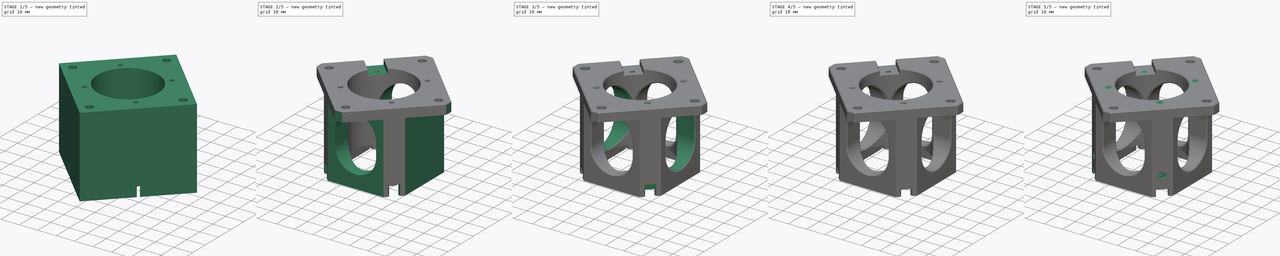
[diagram: build sequence overview — one tinted view per stage of 5, left to right]
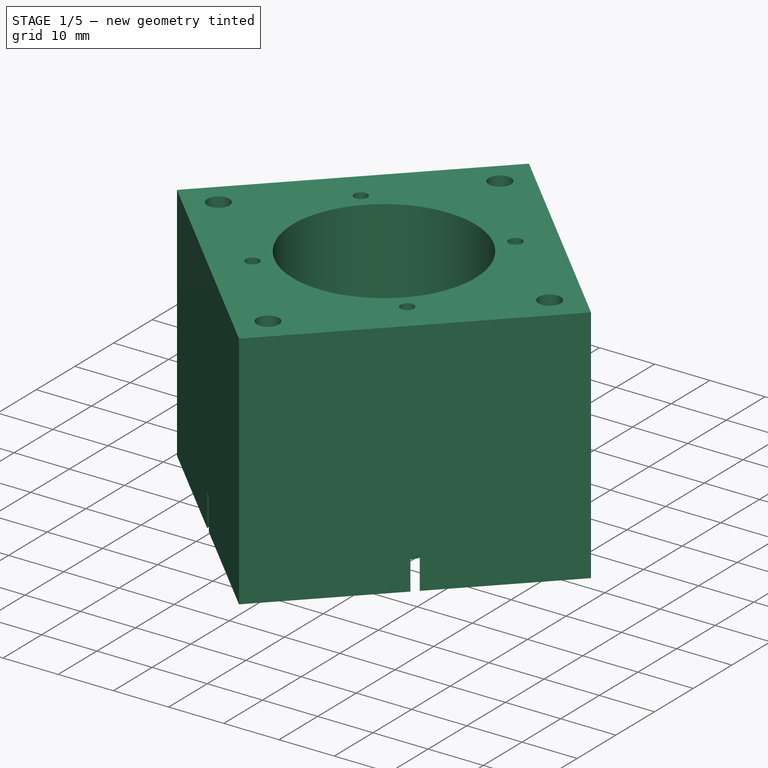
[diagram: stage 1 of 5 — iso view after this stage's code; geometry added in this stage tinted green]
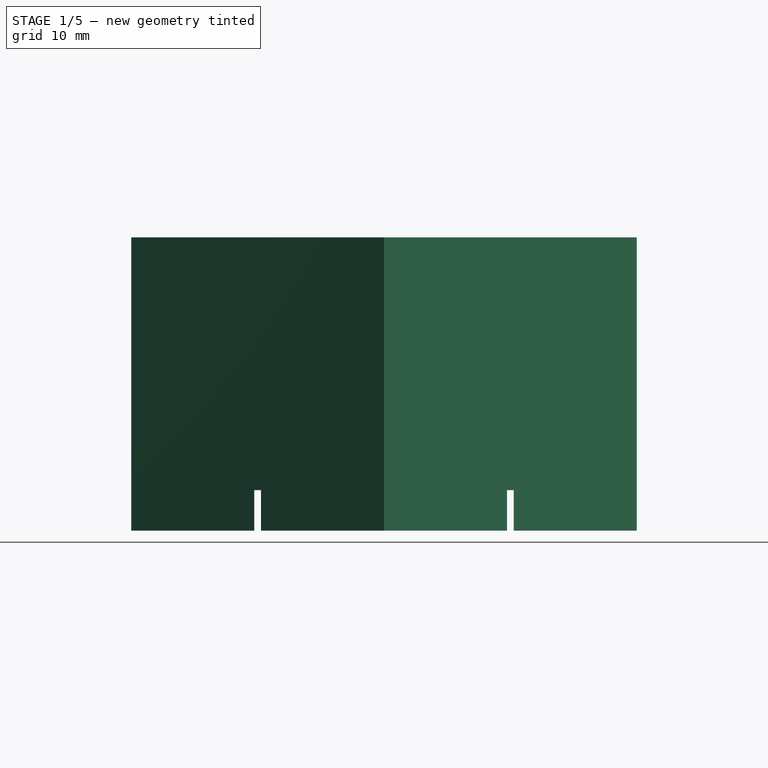
[diagram: stage 1 of 5 — front view after this stage's code; geometry added in this stage tinted green]
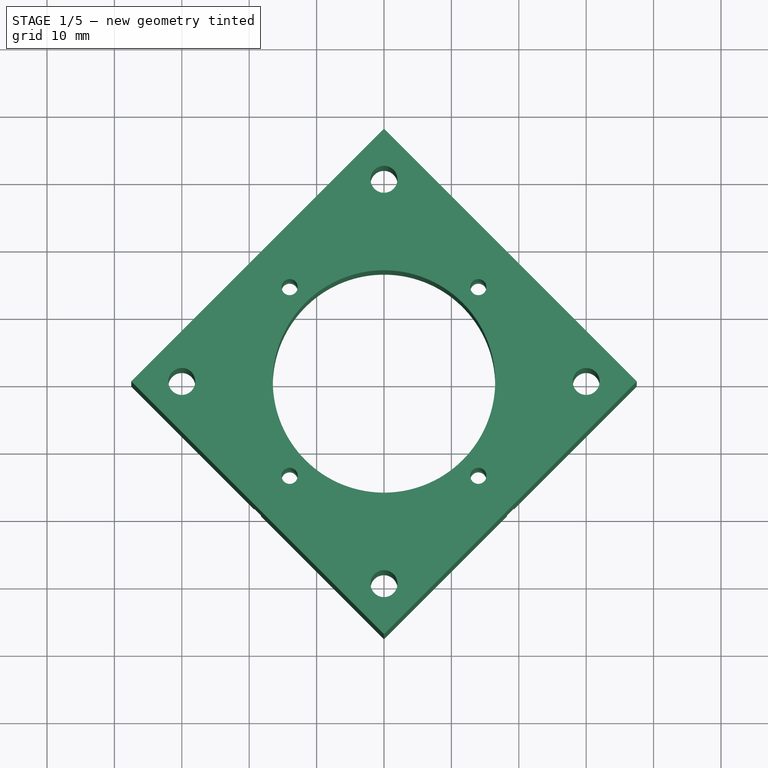
[diagram: stage 1 of 5 — top view after this stage's code; geometry added in this stage tinted green]
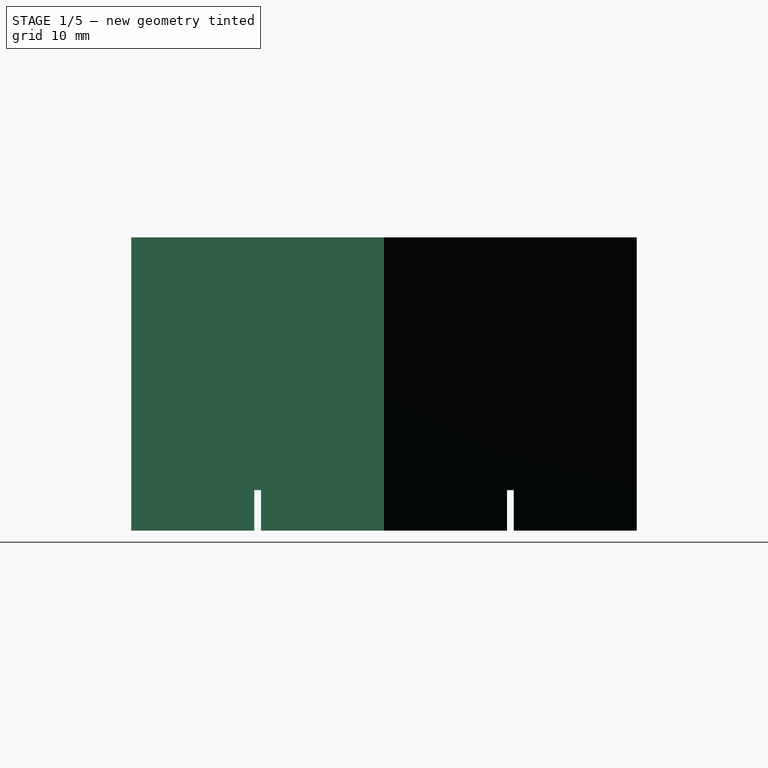
[diagram: stage 1 of 5 — right view after this stage's code; geometry added in this stage tinted green]
FCSTD DOCUMENT  (FreeCAD 0.19R24276 (Git))
Label: bottom-camera-mount
License: All rights reserved
LicenseURL: http://en.wikipedia.org/wiki/All_rights_reserved
objects: Sketcher::SketchObject×19, PartDesign::Plane×13, PartDesign::Pocket×11, PartDesign::Pad×6, PartDesign::PolarPattern×5, PartDesign::Chamfer×3, PartDesign::Hole×1, PartDesign::Line×1, PartDesign::Groove×1, PartDesign::Fillet×1, PartDesign::Body×1
note: 85 computed .brp shape members not serialized (recipe doc carries the construction recipe); baked Part::Feature solids carry a one-line shape summary decoded from their .brp

FEATURE [Sketcher::SketchObject] Sketch
  FullyConstrained = false
  MapMode = 5
  Support = -> [XY_Plane]
  sketch-geometry (16):
    g0: LineSegment StartX=-37.5 StartY=0 StartZ=0 EndX=0 EndY=37.5 EndZ=0
    g1: LineSegment StartX=0 StartY=37.5 StartZ=0 EndX=37.5 EndY=0 EndZ=0
    g2: LineSegment StartX=37.5 StartY=0 StartZ=0 EndX=3.233e-12 EndY=-37.5 EndZ=0
    g3: LineSegment StartX=3.233e-12 StartY=-37.5 StartZ=0 EndX=-37.5 EndY=0 EndZ=0
    g4: LineSegment StartX=-30 StartY=3.6e-15 StartZ=0 EndX=0 EndY=30 EndZ=0
    g5: LineSegment StartX=0 StartY=30 StartZ=0 EndX=30 EndY=3.6e-15 EndZ=0
    g6: LineSegment StartX=30 StartY=3.6e-15 StartZ=0 EndX=-9.95e-14 EndY=-30 EndZ=0
    g7: LineSegment StartX=-9.95e-14 StartY=-30 StartZ=0 EndX=-30 EndY=3.6e-15 EndZ=0
    g8: LineSegment StartX=-19.1024 StartY=18.5846 StartZ=0 EndX=19.3976 EndY=18.5846 EndZ=0
    g9: LineSegment StartX=19.3976 StartY=18.5846 StartZ=0 EndX=19.3976 EndY=-19.9154 EndZ=0
    g10: LineSegment StartX=19.3976 StartY=-19.9154 StartZ=0 EndX=-19.1024 EndY=-19.9154 EndZ=0
    g11: LineSegment StartX=-19.1024 StartY=-19.9154 StartZ=0 EndX=-19.1024 EndY=18.5846 EndZ=0
    g12: Circle CenterX=0 CenterY=30 CenterZ=0 NormalX=0 NormalY=0 NormalZ=1 AngleXU=0 Radius=2
    g13: Circle CenterX=30 CenterY=3.6e-15 CenterZ=0 NormalX=0 NormalY=0 NormalZ=1 AngleXU=0 Radius=2
    g14: Circle CenterX=-30 CenterY=3.6e-15 CenterZ=0 NormalX=0 NormalY=0 NormalZ=1 AngleXU=0 Radius=2
    g15: Circle CenterX=-9.95e-14 CenterY=-30 CenterZ=0 NormalX=0 NormalY=0 NormalZ=1 AngleXU=0 Radius=2
  constraints (42):
    c: PointOnObject(g0,g-1)
    c: PointOnObject(g0,g-2)
    c: Coincident(g0,g1)
    c: PointOnObject(g1,g-1)
    c: Coincident(g1,g2)
    c: Coincident(g2,g3)
    c: Coincident(g3,g0)
    c: PointOnObject(g4,g-1)
    c: PointOnObject(g4,g-2)
    c: Coincident(g4,g5)
    c: PointOnObject(g5,g-1)
    c: Coincident(g5,g6)
    c: Coincident(g6,g7)
    c: Coincident(g7,g4)
    c: Equal(g0,g1)
    c: Equal(g0,g2)
    c: Equal(g0,g3)
    c: Equal(g4,g5)
    c: Equal(g4,g6)
    c: Equal(g4,g7)
    c: Angle(g-1,g4) = 0.785398
    c: Angle(g-1,g0) = 0.785398
    c: DistanceY(g6,g4) = 60
    c: DistanceY(g2,g0) = 75
    c: Coincident(g8,g9)
    c: Coincident(g9,g10)
    c: Coincident(g10,g11)
    c: Coincident(g11,g8)
    c: Horizontal(g8)
    c: Horizontal(g10)
    c: Vertical(g9)
    c: Vertical(g11)
    c: DistanceX(g8,g8) = 38.5
    c: DistanceY(g11,g11) = 38.5
    c: Coincident(g12,g4)
    c: Coincident(g13,g5)
    c: Coincident(g14,g4)
    c: Coincident(g15,g6)
    c: Diameter(g12) = 4
    c: Diameter(g13) = 4
    c: Diameter(g15) = 4
    c: Diameter(g14) = 4
FEATURE [PartDesign::Pad] Pad
  AllowMultiFace = false
  Direction = (1,1,1)
  Length = 43.5
  Length2 = 100
  Profile = -> Sketch
  Type = 0
FEATURE [Sketcher::SketchObject] Sketch001  label="CameraPCBCutOut"
  FullyConstrained = true
  MapMode = 5
  Support = -> [XY_Plane]
  sketch-geometry (4):
    g0: LineSegment StartX=-19.25 StartY=19.25 StartZ=0 EndX=19.25 EndY=19.25 EndZ=0
    g1: LineSegment StartX=19.25 StartY=19.25 StartZ=0 EndX=19.25 EndY=-19.25 EndZ=0
    g2: LineSegment StartX=19.25 StartY=-19.25 StartZ=0 EndX=-19.25 EndY=-19.25 EndZ=0
    g3: LineSegment StartX=-19.25 StartY=-19.25 StartZ=0 EndX=-19.25 EndY=19.25 EndZ=0
  constraints (10):
    c: Coincident(g0,g1)
    c: Coincident(g1,g2)
    c: Coincident(g2,g3)
    c: Coincident(g3,g0)
    c: Horizontal(g2)
    c: Vertical(g1)
    c: DistanceX(g0,g0) = 38.5
    c: DistanceY(g3,g3) = 38.5
    c: Symmetric(g0,g0,g-2)
    c: Symmetric(g2,g0,g-1)
FEATURE [PartDesign::Pocket] Pocket
  AllowMultiFace = false
  BaseFeature = -> Pad
  Length = 6
  Length2 = 100
  Profile = -> Sketch001
  Reversed = true
  Type = 0
FEATURE [Sketcher::SketchObject] Sketch002  label="CameraScrewHoles"
  FullyConstrained = true
  MapMode = 5
  Support = -> [XY_Plane]
  sketch-geometry (8):
    g0: LineSegment StartX=-14 StartY=14 StartZ=0 EndX=14 EndY=14 EndZ=0
    g1: LineSegment StartX=14 StartY=14 StartZ=0 EndX=14 EndY=-14 EndZ=0
    g2: LineSegment StartX=14 StartY=-14 StartZ=0 EndX=-14 EndY=-14 EndZ=0
    g3: LineSegment StartX=-14 StartY=-14 StartZ=0 EndX=-14 EndY=14 EndZ=0
    g4: Circle CenterX=-14 CenterY=14 CenterZ=0 NormalX=0 NormalY=0 NormalZ=1 AngleXU=0 Radius=1
    g5: Circle CenterX=14 CenterY=14 CenterZ=0 NormalX=0 NormalY=0 NormalZ=1 AngleXU=0 Radius=1
    g6: Circle CenterX=-14 CenterY=-14 CenterZ=0 NormalX=0 NormalY=0 NormalZ=1 AngleXU=0 Radius=1
    g7: Circle CenterX=14 CenterY=-14 CenterZ=0 NormalX=0 NormalY=0 NormalZ=1 AngleXU=0 Radius=1
  constraints (18):
    c: Coincident(g0,g1)
    c: Coincident(g1,g2)
    c: Coincident(g2,g3)
    c: Coincident(g3,g0)
    c: Horizontal(g2)
    c: Vertical(g1)
    c: DistanceX(g0,g0) = 28
    c: DistanceY(g3,g3) = 28
    c: Symmetric(g0,g0,g-2)
    c: Symmetric(g0,g2,g-1)
    c: Coincident(g4,g0)
    c: Coincident(g5,g0)
    c: Coincident(g6,g2)
    c: Coincident(g7,g1)
    c: Diameter(g4) = 2
    c: Equal(g6,g7)
    c: Equal(g7,g5)
    c: Equal(g5,g4)
FEATURE [Sketcher::SketchObject] Sketch005  label="CounterBoreM2.5BoltHeads"
  AttachmentOffset = pos=(0,0,14) rot=(0,0,1;0rad)
  FullyConstrained = false
  MapMode = 5
  Placement = pos=(0,0,14) rot=(0,0,1;0rad)
  Support = -> [XY_Plane]
  sketch-geometry (8):
    g0: LineSegment StartX=-14 StartY=14 StartZ=0 EndX=14 EndY=14 EndZ=0
    g1: LineSegment StartX=14 StartY=14 StartZ=0 EndX=14 EndY=-14 EndZ=0
    g2: LineSegment StartX=14 StartY=-14 StartZ=0 EndX=-14 EndY=-14 EndZ=0
    g3: LineSegment StartX=-14 StartY=-14 StartZ=0 EndX=-14 EndY=14 EndZ=0
    g4: Circle CenterX=-14 CenterY=14 CenterZ=0 NormalX=0 NormalY=0 NormalZ=1 AngleXU=0 Radius=2.5
    g5: Circle CenterX=14 CenterY=14 CenterZ=0 NormalX=0 NormalY=0 NormalZ=1 AngleXU=0 Radius=2.30173
    g6: Circle CenterX=14 CenterY=-14 CenterZ=0 NormalX=0 NormalY=0 NormalZ=1 AngleXU=0 Radius=2.30173
    g7: Circle CenterX=-14 CenterY=-14 CenterZ=0 NormalX=0 NormalY=0 NormalZ=1 AngleXU=0 Radius=2.30173
  constraints (18):
    c: Coincident(g0,g1)
    c: Coincident(g1,g2)
    c: Coincident(g2,g3)
    c: Coincident(g3,g0)
    c: Horizontal(g0)
    c: Horizontal(g2)
    c: Vertical(g1)
    c: Vertical(g3)
    c: Symmetric(g0,g1,g-1)
    c: DistanceX(g0,g0) = 28
    c: DistanceY(g1,g1) = 28
    c: Coincident(g4,g0)
    c: Coincident(g5,g0)
    c: Coincident(g6,g1)
    c: Coincident(g7,g2)
    c: Diameter(g4) = 5
    c: Equal(g5,g6)
    c: Equal(g6,g7)
FEATURE [Sketcher::SketchObject] Sketch006  label="CameraScrewTurrets"
  AttachmentOffset = pos=(0,0,3.5) rot=(0,0,1;0rad)
  FullyConstrained = true
  MapMode = 5
  Placement = pos=(0,0,3.5) rot=(0,0,1;0rad)
  Support = -> [XY_Plane]
  sketch-geometry (8):
    g0: LineSegment StartX=-14 StartY=14 StartZ=0 EndX=14 EndY=14 EndZ=0
    g1: LineSegment StartX=14 StartY=14 StartZ=0 EndX=14 EndY=-14 EndZ=0
    g2: LineSegment StartX=14 StartY=-14 StartZ=0 EndX=-14 EndY=-14 EndZ=0
    g3: LineSegment StartX=-14 StartY=-14 StartZ=0 EndX=-14 EndY=14 EndZ=0
    g4: Circle CenterX=-14 CenterY=14 CenterZ=0 NormalX=0 NormalY=0 NormalZ=1 AngleXU=0 Radius=3
    g5: Circle CenterX=14 CenterY=14 CenterZ=0 NormalX=0 NormalY=0 NormalZ=1 AngleXU=0 Radius=3
    g6: Circle CenterX=-14 CenterY=-14 CenterZ=0 NormalX=0 NormalY=0 NormalZ=1 AngleXU=0 Radius=3
    g7: Circle CenterX=14 CenterY=-14 CenterZ=0 NormalX=0 NormalY=0 NormalZ=1 AngleXU=0 Radius=3
  constraints (18):
    c: Coincident(g0,g1)
    c: Coincident(g1,g2)
    c: Coincident(g2,g3)
    c: Coincident(g3,g0)
    c: Horizontal(g2)
    c: Vertical(g1)
    c: DistanceX(g0,g0) = 28
    c: DistanceY(g3,g3) = 28
    c: Symmetric(g0,g0,g-2)
    c: Symmetric(g0,g2,g-1)
    c: Coincident(g4,g0)
    c: Coincident(g5,g0)
    c: Coincident(g6,g2)
    c: Coincident(g7,g1)
    c: Diameter(g4) = 6
    c: Equal(g4,g6)
    c: Equal(g6,g7)
    c: Equal(g7,g5)
FEATURE [PartDesign::Pad] Pad001  label="PCBSupports"
  BaseFeature = -> Pocket
  Direction = (1,1,1)
  Length = 10
  Length2 = 100
  Profile = -> Sketch006
  Type = 0
FEATURE [Sketcher::SketchObject] Sketch007  label="CameraLensCutOut"
  FullyConstrained = true
  MapMode = 5
  Support = -> [XY_Plane]
  sketch-geometry (1):
    g0: Circle CenterX=0 CenterY=0 CenterZ=0 NormalX=0 NormalY=0 NormalZ=1 AngleXU=0 Radius=16.5
  constraints (2):
    c: Coincident(g0,g-1)
    c: Diameter(g0) = 33
FEATURE [PartDesign::Pocket] Pocket007
  BaseFeature = -> Pad001
  Length = 5
  Length2 = 100
  Profile = -> Sketch007
  Reversed = true
  Type = 1
FEATURE [PartDesign::Hole] Hole
  BaseFeature = -> Pocket007
  Depth = 25
  DepthType = 1
  Diameter = 2.4
  DrillForDepth = false
  DrillPoint = 1
  DrillPointAngle = 118
  HoleCutCountersinkAngle = 90
  HoleCutCustomValues = false
  HoleCutDepth = 0
  HoleCutDiameter = 6.1
  HoleCutType = 0
  ModelActualThread = false
  Profile = -> Sketch002
  Reversed = true
  Tapered = false
  TaperedAngle = 90
  ThreadAngle = 0
  ThreadClass = 0
  ThreadCutOffInner = 0
  ThreadCutOffOuter = 0
  ThreadDirection = 0
  ThreadFit = 0
  ThreadPitch = 0
  ThreadSize = 6
  ThreadType = 1
  Threaded = false
FEATURE [PartDesign::Pocket] Pocket006
  BaseFeature = -> Hole
  Length = 4
  Length2 = 100
  Profile = -> Sketch005
  Type = 0
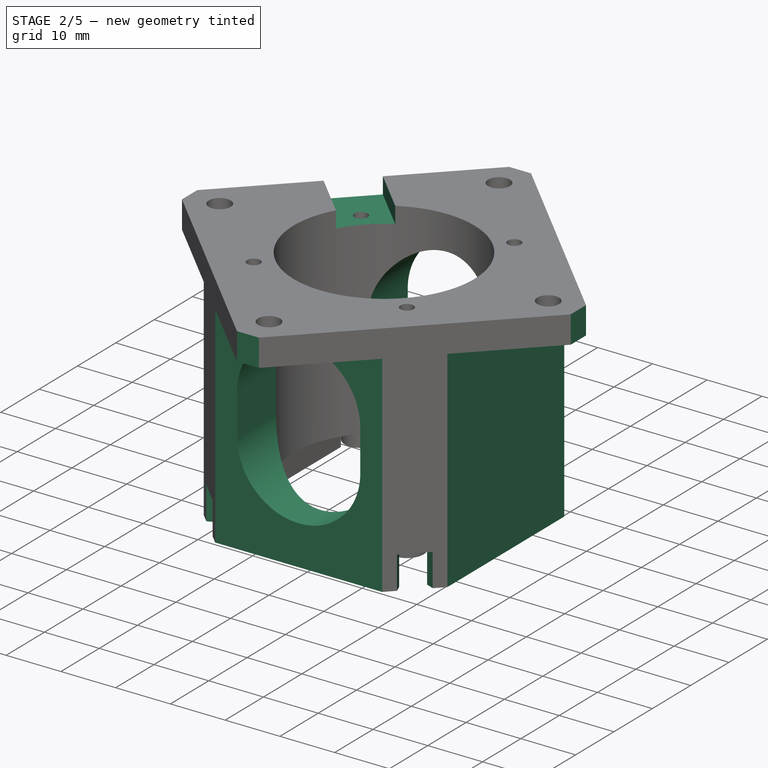
[diagram: stage 2 of 5 — iso view after this stage's code; geometry added in this stage tinted green]
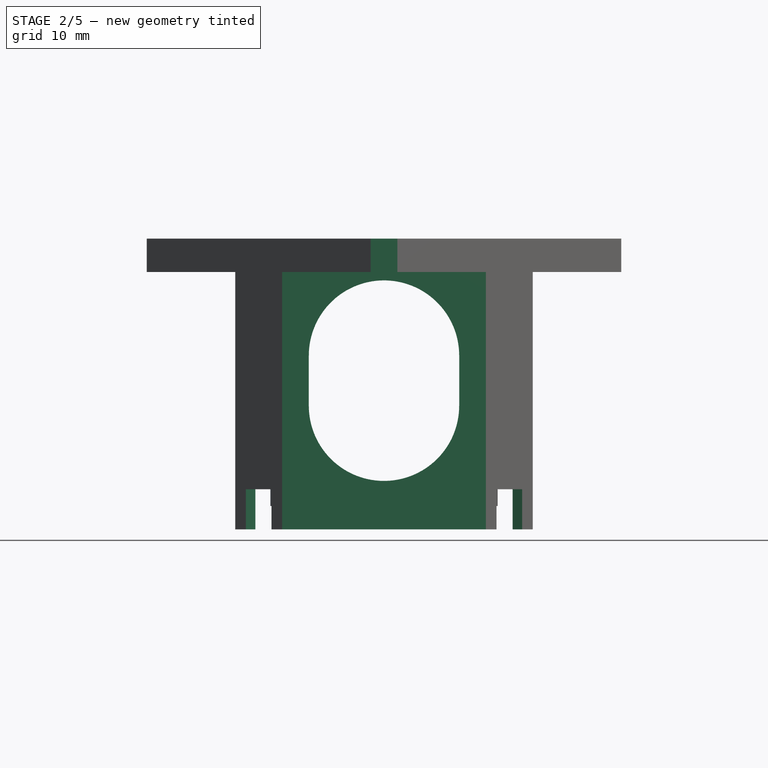
[diagram: stage 2 of 5 — front view after this stage's code; geometry added in this stage tinted green]
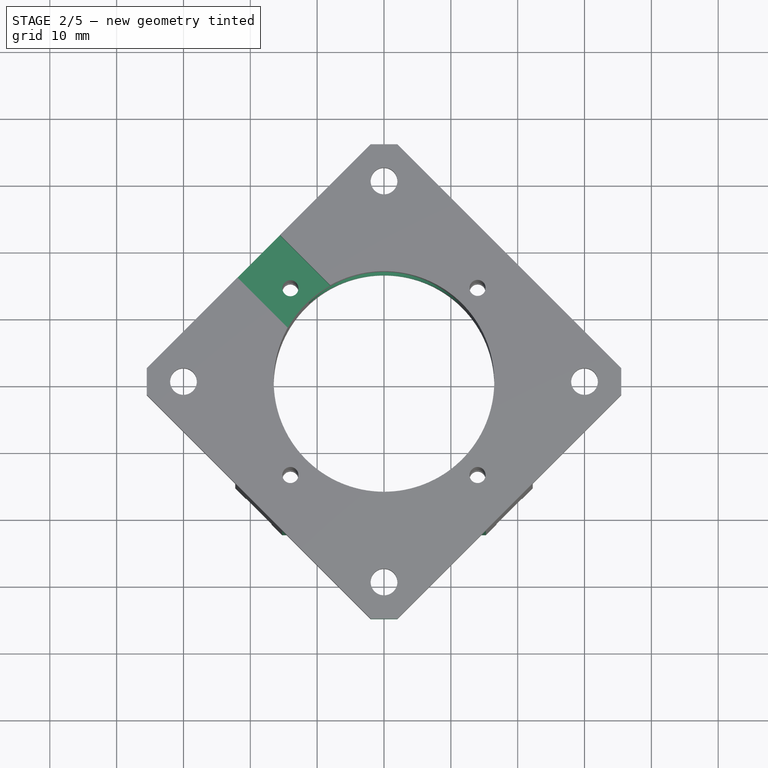
[diagram: stage 2 of 5 — top view after this stage's code; geometry added in this stage tinted green]
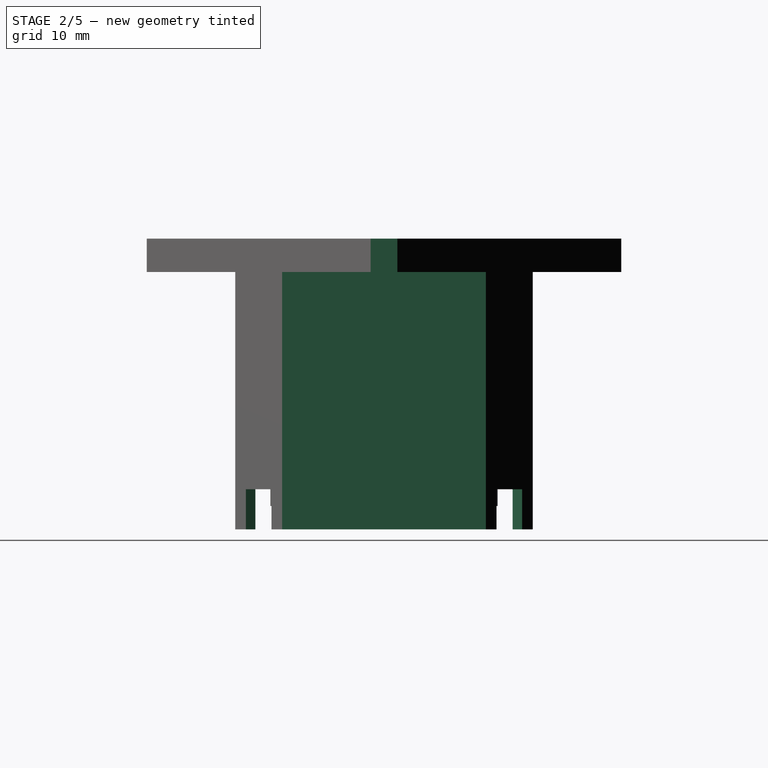
[diagram: stage 2 of 5 — right view after this stage's code; geometry added in this stage tinted green]
FEATURE [PartDesign::Plane] DatumPlane002
  Length = 85.2
  MapMode = 5
  Placement = pos=(0,0,43.5) rot=(0,0,1;0rad)
  ResizeMode = 0
  Support = -> [Pocket006]
  Width = 85.2
FEATURE [Sketcher::SketchObject] Sketch008
  FullyConstrained = true
  MapMode = 5
  Placement = pos=(0,0,43.5) rot=(0,0,1;0rad)
  Support = -> [DatumPlane002]
  sketch-geometry (4):
    g0: LineSegment StartX=-6.36396 StartY=0 StartZ=0 EndX=-22.6274 EndY=16.2635 EndZ=0
    g1: LineSegment StartX=-22.6274 StartY=16.2635 StartZ=0 EndX=-16.2635 EndY=22.6274 EndZ=0
    g2: LineSegment StartX=-16.2635 StartY=22.6274 StartZ=0 EndX=0 EndY=6.36396 EndZ=0
    g3: LineSegment StartX=0 StartY=6.36396 StartZ=0 EndX=-6.36396 EndY=0 EndZ=0
  constraints (12):
    c: PointOnObject(g0,g-1)
    c: Coincident(g0,g1)
    c: Coincident(g1,g2)
    c: PointOnObject(g2,g-2)
    c: Coincident(g2,g3)
    c: Coincident(g3,g0)
    c: Parallel(g1,g3)
    c: Parallel(g0,g2)
    c: Angle(g-1,g3) = 0.785398
    c: Distance(g3) = 9
    c: Distance(g0) = 23
    c: Perpendicular(g3,g2)
FEATURE [PartDesign::Pocket] Pocket008
  BaseFeature = -> Pocket006
  Length = 3
  Length2 = 100
  Profile = -> Sketch008
  Type = 0
FEATURE [PartDesign::Plane] DatumPlane001  label="PrintPlane"
  AttachmentOffset = pos=(0,0,0) rot=(0,0,1;0.785398rad)
  Length = 120.491
  MapMode = 5
  Placement = pos=(0,0,43.5) rot=(0,0,1;0.785398rad)
  ResizeMode = 0
  Support = -> [Pocket008]
  Width = 120.491
FEATURE [Sketcher::SketchObject] Sketch009
  ExternalGeometry = -> [Pocket008]
  FullyConstrained = true
  MapMode = 5
  Placement = pos=(0,0,43.5) rot=(0,0,1;0rad)
  Support = -> [DatumPlane002]
  sketch-geometry (11):
    g0: LineSegment StartX=35.5 StartY=35.5 StartZ=0 EndX=-35.5 EndY=35.5 EndZ=0
    g1: LineSegment StartX=-35.5 StartY=35.5 StartZ=0 EndX=-35.5 EndY=-35.5 EndZ=0
    g2: LineSegment StartX=-35.5 StartY=-35.5 StartZ=0 EndX=35.5 EndY=-35.5 EndZ=0
    g3: LineSegment StartX=35.5 StartY=-35.5 StartZ=0 EndX=35.5 EndY=35.5 EndZ=0
    g4: Circle CenterX=0 CenterY=0 CenterZ=0 NormalX=0 NormalY=0 NormalZ=1 AngleXU=0 Radius=50.2046
    g5: GeomPoint X=4e-15 Y=35.5 Z=0
    g6: LineSegment StartX=38.3284 StartY=38.3284 StartZ=0 EndX=-38.3284 EndY=38.3284 EndZ=0
    g7: LineSegment StartX=-38.3284 StartY=38.3284 StartZ=0 EndX=-38.3284 EndY=-38.3284 EndZ=0
    g8: LineSegment StartX=-38.3284 StartY=-38.3284 StartZ=0 EndX=38.3284 EndY=-38.3284 EndZ=0
    g9: LineSegment StartX=38.3284 StartY=-38.3284 StartZ=0 EndX=38.3284 EndY=38.3284 EndZ=0
    g10: Circle CenterX=0 CenterY=0 CenterZ=0 NormalX=0 NormalY=0 NormalZ=1 AngleXU=0 Radius=54.2046
  constraints (29):
    c: Coincident(g0,g1)
    c: Coincident(g1,g2)
    c: Coincident(g2,g3)
    c: Coincident(g3,g0)
    c: Equal(g0,g1)
    c: Equal(g0,g2)
    c: Equal(g0,g3)
    c: PointOnObject(g0,g4)
    c: PointOnObject(g1,g4)
    c: PointOnObject(g2,g4)
    c: PointOnObject(g3,g4)
    c: Coincident(g4,g-1)
    c: Horizontal(g0)
    c: Symmetric(g0,g0,g5)
    c: Distance(g5,g-3) = 2
    c: Coincident(g6,g7)
    c: Coincident(g7,g8)
    c: Coincident(g8,g9)
    c: Coincident(g9,g6)
    c: Equal(g6,g7)
    c: Equal(g6,g8)
    c: Equal(g6,g9)
    c: PointOnObject(g6,g10)
    c: PointOnObject(g7,g10)
    c: PointOnObject(g8,g10)
    c: PointOnObject(g9,g10)
    c: Coincident(g10,g-1)
    c: Horizontal(g6)
    c: Distance(g0,g6) = 4
FEATURE [PartDesign::Pocket] Pocket009  label="Outer Chamfer"
  BaseFeature = -> Pocket008
  Length = 20
  Length2 = 100
  Profile = -> Sketch009
  Type = 1
FEATURE [PartDesign::Plane] DatumPlane
  Length = 85.2
  MapMode = 5
  Placement = pos=(0,0,6) rot=(1,0,0;3.14159rad)
  ResizeMode = 0
  Support = -> [Pocket009]
  Width = 85.2
FEATURE [PartDesign::Chamfer] Chamfer
  Angle = 45
  Base = -> Pocket009 [Edge62,Edge18,Edge31,Edge65,Edge2,Edge4,Edge71,Edge69]
  BaseFeature = -> Pocket009
  ChamferType = 0
  FlipDirection = false
  Size = 2
  Size2 = 1
  SupportTransform = false
FEATURE [PartDesign::Plane] DatumPlane003
  Length = 85.2
  MapMode = 5
  Placement = pos=(0,0,0) rot=(1,0,0;3.14159rad)
  ResizeMode = 0
  Support = -> [Pocket008]
  Width = 85.2
FEATURE [Sketcher::SketchObject] Sketch010
  ExternalGeometry = -> [Pocket008]
  FullyConstrained = true
  MapMode = 5
  Placement = pos=(0,0,0) rot=(1,0,0;3.14159rad)
  Support = -> [DatumPlane003]
  sketch-geometry (11):
    g0: LineSegment StartX=22.25 StartY=22.25 StartZ=0 EndX=-22.25 EndY=22.25 EndZ=0
    g1: LineSegment StartX=-22.25 StartY=22.25 StartZ=0 EndX=-22.25 EndY=-22.25 EndZ=0
    g2: LineSegment StartX=-22.25 StartY=-22.25 StartZ=0 EndX=22.25 EndY=-22.25 EndZ=0
    g3: LineSegment StartX=22.25 StartY=-22.25 StartZ=0 EndX=22.25 EndY=22.25 EndZ=0
    g4: Circle CenterX=0 CenterY=0 CenterZ=0 NormalX=0 NormalY=0 NormalZ=1 AngleXU=0 Radius=31.4663
    g5: GeomPoint X=-3.4e-15 Y=22.25 Z=0
    g6: LineSegment StartX=39.9277 StartY=39.9277 StartZ=0 EndX=-39.9277 EndY=39.9277 EndZ=0
    g7: LineSegment StartX=-39.9277 StartY=39.9277 StartZ=0 EndX=-39.9277 EndY=-39.9277 EndZ=0
    g8: LineSegment StartX=-39.9277 StartY=-39.9277 StartZ=0 EndX=39.9277 EndY=-39.9277 EndZ=0
    g9: LineSegment StartX=39.9277 StartY=-39.9277 StartZ=0 EndX=39.9277 EndY=39.9277 EndZ=0
    g10: Circle CenterX=0 CenterY=0 CenterZ=0 NormalX=0 NormalY=0 NormalZ=1 AngleXU=0 Radius=56.4663
  constraints (30):
    c: Coincident(g0,g1)
    c: Coincident(g1,g2)
    c: Coincident(g2,g3)
    c: Coincident(g3,g0)
    c: Equal(g0,g1)
    c: Equal(g0,g2)
    c: Equal(g0,g3)
    c: PointOnObject(g0,g4)
    c: PointOnObject(g1,g4)
    c: PointOnObject(g2,g4)
    c: PointOnObject(g3,g4)
    c: Coincident(g4,g-1)
    c: Horizontal(g0)
    c: Symmetric(g0,g0,g5)
    c: Coincident(g6,g7)
    c: Coincident(g7,g8)
    c: Coincident(g8,g9)
    c: Coincident(g9,g6)
    c: Equal(g6,g7)
    c: Equal(g6,g8)
    c: Equal(g6,g9)
    c: PointOnObject(g6,g10)
    c: PointOnObject(g7,g10)
    c: PointOnObject(g8,g10)
    c: PointOnObject(g9,g10)
    c: Coincident(g10,g-1)
    c: Horizontal(g6)
    c: Distance(g0,g6) = 25
    c: Distance(g-5) = 36.5
    c: DistanceX(g0,g-5) = 3
FEATURE [PartDesign::Pocket] Pocket010  label="Minimizes Form"
  BaseFeature = -> Chamfer
  Length = 38.5
  Length2 = 100
  Profile = -> Sketch010
  Type = 0
FEATURE [PartDesign::Plane] DatumPlane004
  Length = 84.9478
  MapMode = 5
  Placement = pos=(0,-22.25,0) rot=(1,0,0;1.5708rad)
  ResizeMode = 0
  Support = -> [Pocket010]
  Width = 82.4478
FEATURE [Sketcher::SketchObject] Sketch011
  ExternalGeometry = -> [Pocket010]
  FullyConstrained = true
  MapMode = 5
  Placement = pos=(0,0,0) rot=(1,0,0;1.5708rad)
  Support = -> [XZ_Plane]
  sketch-geometry (6):
    g0: ArcOfCircle CenterX=0 CenterY=18.5 CenterZ=0 NormalX=0 NormalY=0 NormalZ=1 AngleXU=0 Radius=11.25 StartAngle=3.14159 EndAngle=6.28319
    g1: ArcOfCircle CenterX=-5e-16 CenterY=26 CenterZ=0 NormalX=0 NormalY=0 NormalZ=1 AngleXU=0 Radius=11.25 StartAngle=1e-16 EndAngle=3.14159
    g2: LineSegment StartX=11.25 StartY=18.5 StartZ=0 EndX=11.25 EndY=26 EndZ=0
    g3: LineSegment StartX=-11.25 StartY=18.5 StartZ=0 EndX=-11.25 EndY=26 EndZ=0
    g4: LineSegment StartX=0 StartY=6 StartZ=0 EndX=0 EndY=7.25 EndZ=0
    g5: LineSegment StartX=0 StartY=38.5 StartZ=0 EndX=0 EndY=37.25 EndZ=0
  constraints (18):
    c: Tangent(g0,g3) = 1.5708
    c: Tangent(g0,g2) = -1.5708
    c: Tangent(g2,g1) = -1.5708
    c: Tangent(g3,g1) = 1.5708
    c: Vertical(g2)
    c: Equal(g0,g1)
    c: PointOnObject(g0,g-2)
    c: Diameter(g1) = 22.5
    c: DistanceY(g0,g1) = 7.5
    c: PointOnObject(g4,g-2)
    c: PointOnObject(g4,g0)
    c: Vertical(g4)
    c: PointOnObject(g4,g-3)
    c: PointOnObject(g5,g-4)
    c: PointOnObject(g5,g1)
    c: Tangent(g5,g4)
    c: Equal(g5,g4)
    c: DistanceY(g4,g4) = 1.25
FEATURE [PartDesign::Pocket] Pocket011  label="22.5mm oval cutout"
  BaseFeature = -> Pocket010
  Length = 200
  Length2 = 200
  Profile = -> Sketch011
  Type = 4
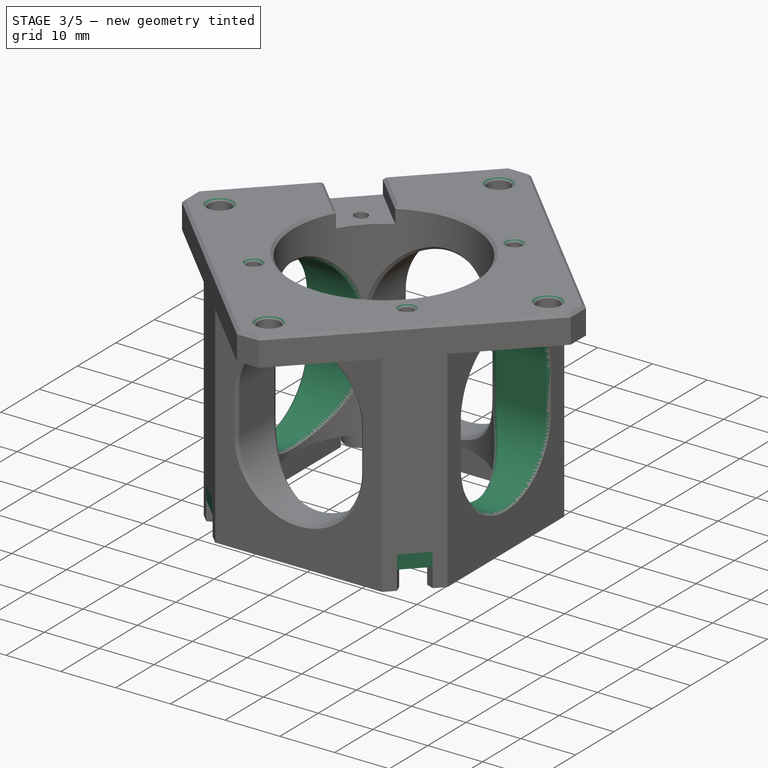
[diagram: stage 3 of 5 — iso view after this stage's code; geometry added in this stage tinted green]
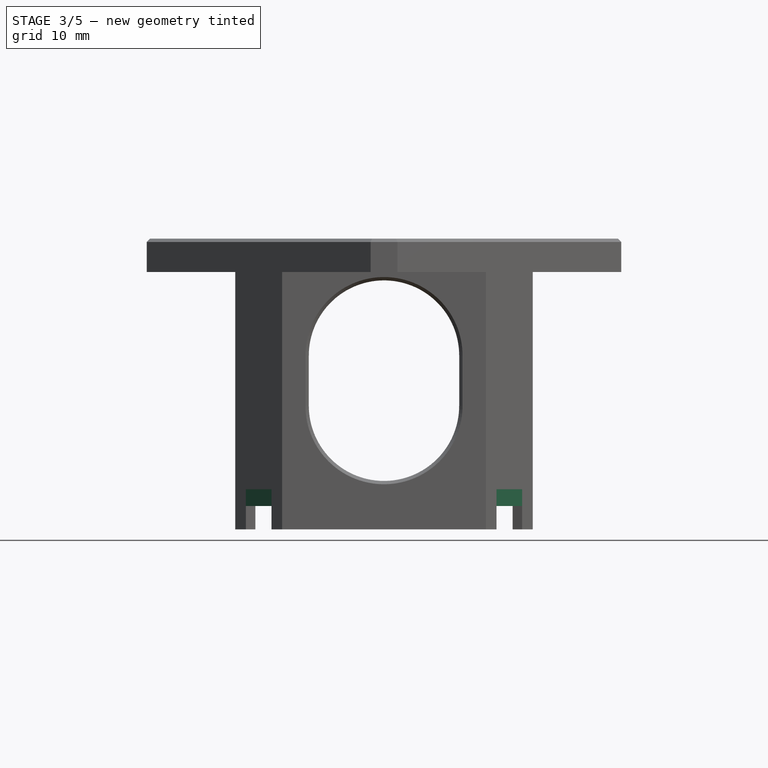
[diagram: stage 3 of 5 — front view after this stage's code; geometry added in this stage tinted green]
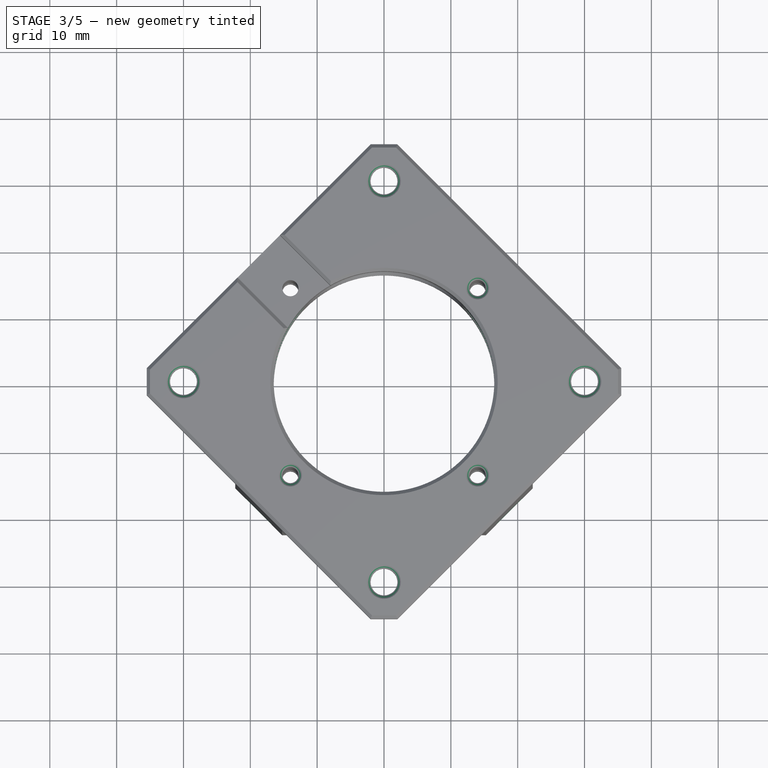
[diagram: stage 3 of 5 — top view after this stage's code; geometry added in this stage tinted green]
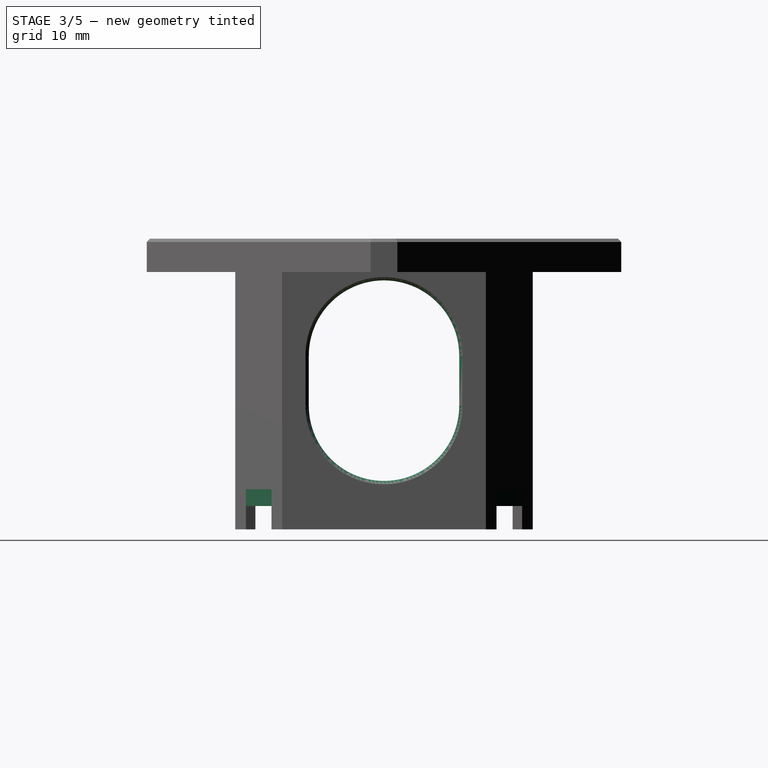
[diagram: stage 3 of 5 — right view after this stage's code; geometry added in this stage tinted green]
FEATURE [PartDesign::PolarPattern] PolarPattern
  Angle = 90
  Axis = -> Z_Axis
  BaseFeature = -> Pocket011
  Occurrences = 2
  Originals = -> [Pocket011]
  Reversed = true
FEATURE [PartDesign::Plane] DatumPlane005
  Length = 85.2
  MapMode = 5
  Placement = pos=(0,0,38.5) rot=(1,0,0;3.14159rad)
  ResizeMode = 0
  Support = -> [PolarPattern]
  Width = 85.2
FEATURE [Sketcher::SketchObject] Sketch012
  ExternalGeometry = -> [PolarPattern]
  FullyConstrained = true
  MapMode = 5
  Placement = pos=(0,0,38.5) rot=(1,0,0;3.14159rad)
  Support = -> [DatumPlane005]
  sketch-geometry (28):
    g0: LineSegment StartX=2.75 StartY=28.4123 StartZ=0 EndX=2.75 EndY=31.5877 EndZ=0
    g1: LineSegment StartX=2.75 StartY=31.5877 StartZ=0 EndX=0 EndY=33.1754 EndZ=0
    g2: LineSegment StartX=0 StartY=33.1754 StartZ=0 EndX=-2.75 EndY=31.5877 EndZ=0
    g3: LineSegment StartX=-2.75 StartY=31.5877 StartZ=0 EndX=-2.75 EndY=28.4123 EndZ=0
    g4: LineSegment StartX=-2.75 StartY=28.4123 StartZ=0 EndX=-3.709e-12 EndY=26.8246 EndZ=0
    g5: LineSegment StartX=-3.709e-12 StartY=26.8246 StartZ=0 EndX=2.75 EndY=28.4123 EndZ=0
    g6: Circle CenterX=-9.95e-14 CenterY=30 CenterZ=0 NormalX=0 NormalY=0 NormalZ=1 AngleXU=0 Radius=3.17543
    g7: LineSegment StartX=31.5877 StartY=2.75 StartZ=0 EndX=28.4123 EndY=2.75 EndZ=0
    g8: LineSegment StartX=28.4123 StartY=2.75 StartZ=0 EndX=26.8246 EndY=-7.1e-15 EndZ=0
    g9: LineSegment StartX=26.8246 StartY=-7.1e-15 StartZ=0 EndX=28.4123 EndY=-2.75 EndZ=0
    g10: LineSegment StartX=28.4123 StartY=-2.75 StartZ=0 EndX=31.5877 EndY=-2.75 EndZ=0
    g11: LineSegment StartX=31.5877 StartY=-2.75 StartZ=0 EndX=33.1754 EndY=0 EndZ=0
    g12: LineSegment StartX=33.1754 StartY=0 StartZ=0 EndX=31.5877 EndY=2.75 EndZ=0
    g13: Circle CenterX=30 CenterY=-3.6e-15 CenterZ=0 NormalX=0 NormalY=0 NormalZ=1 AngleXU=0 Radius=3.17543
    g14: LineSegment StartX=-26.8246 StartY=-6.9e-15 StartZ=0 EndX=-28.4123 EndY=2.75 EndZ=0
    g15: LineSegment StartX=-28.4123 StartY=2.75 StartZ=0 EndX=-31.5877 EndY=2.75 EndZ=0
    g16: LineSegment StartX=-31.5877 StartY=2.75 StartZ=0 EndX=-33.1754 EndY=0 EndZ=0
    g17: LineSegment StartX=-33.1754 StartY=0 StartZ=0 EndX=-31.5877 EndY=-2.75 EndZ=0
    g18: LineSegment StartX=-31.5877 StartY=-2.75 StartZ=0 EndX=-28.4123 EndY=-2.75 EndZ=0
    g19: LineSegment StartX=-28.4123 StartY=-2.75 StartZ=0 EndX=-26.8246 EndY=-7.1e-15 EndZ=0
    g20: Circle CenterX=-30 CenterY=-3.6e-15 CenterZ=0 NormalX=0 NormalY=0 NormalZ=1 AngleXU=0 Radius=3.17543
    g21: LineSegment StartX=2.75 StartY=-31.5877 StartZ=0 EndX=2.75 EndY=-28.4123 EndZ=0
    g22: LineSegment StartX=2.75 StartY=-28.4123 StartZ=0 EndX=0 EndY=-26.8246 EndZ=0
    g23: LineSegment StartX=0 StartY=-26.8246 StartZ=0 EndX=-2.75 EndY=-28.4123 EndZ=0
    g24: LineSegment StartX=-2.75 StartY=-28.4123 StartZ=0 EndX=-2.75 EndY=-31.5877 EndZ=0
    g25: LineSegment StartX=-2.75 StartY=-31.5877 StartZ=0 EndX=0 EndY=-33.1754 EndZ=0
    g26: LineSegment StartX=-2e-16 StartY=-33.1754 StartZ=0 EndX=2.75 EndY=-31.5877 EndZ=0
    g27: Circle CenterX=0 CenterY=-30 CenterZ=0 NormalX=0 NormalY=0 NormalZ=1 AngleXU=0 Radius=3.17543
  constraints (64):
    c: Coincident(g0,g1)
    c: Coincident(g1,g2)
    c: Coincident(g2,g3)
    c: Coincident(g3,g4)
    c: Coincident(g4,g5)
    c: Coincident(g5,g0)
    c: Equal(g0, g1-g5) x5
    c: PointOnObject(g0,g6)
    c: PointOnObject(g1,g6)
    c: PointOnObject(g2,g6)
    c: PointOnObject(g3,g6)
    c: PointOnObject(g4,g6)
    c: PointOnObject(g5,g6)
    c: Coincident(g6,g-6)
    c: Coincident(g7,g8)
    c: Coincident(g8,g9)
    c: Coincident(g9,g10)
    c: Coincident(g10,g11)
    c: Coincident(g11,g12)
    c: Coincident(g12,g7)
    c: Equal(g7, g8-g12) x5
    c: PointOnObject(g7,g13)
    c: PointOnObject(g8,g13)
    c: PointOnObject(g9,g13)
    c: PointOnObject(g10,g13)
    c: PointOnObject(g11,g13)
    c: PointOnObject(g12,g13)
    c: Coincident(g13,g-4)
    c: Coincident(g14,g15)
    c: Coincident(g15,g16)
    c: Coincident(g16,g17)
    c: Coincident(g17,g18)
    c: Coincident(g18,g19)
    c: Coincident(g19,g14)
    c: Equal(g14, g15-g19) x5
    c: PointOnObject(g14,g20)
    c: PointOnObject(g15,g20)
    c: PointOnObject(g16,g20)
    c: PointOnObject(g17,g20)
    c: PointOnObject(g18,g20)
    c: PointOnObject(g19,g20)
    c: Coincident(g20,g-3)
    c: Coincident(g21,g22)
    c: Coincident(g22,g23)
    c: Coincident(g23,g24)
    c: Coincident(g24,g25)
    c: Coincident(g25,g26)
    c: Coincident(g26,g21)
    c: Equal(g21, g22-g26) x5
    c: PointOnObject(g21,g27)
    c: PointOnObject(g22,g27)
    c: PointOnObject(g23,g27)
    c: PointOnObject(g24,g27)
    c: PointOnObject(g25,g27)
    c: PointOnObject(g26,g27)
    c: Coincident(g27,g-5)
    c: Equal(g27,g13)
    c: Equal(g13,g6)
    c: Equal(g6,g20)
    c: PointOnObject(g1,g-2)
    c: PointOnObject(g11,g-1)
    c: PointOnObject(g22,g-2)
    c: PointOnObject(g16,g-1)
    c: DistanceX(g2,g0) = 5.5
FEATURE [PartDesign::Pocket] Pocket012  label="M3 Hex Nut Pockets"
  BaseFeature = -> PolarPattern
  Length = 2.5
  Length2 = 100
  Profile = -> Sketch012
  Type = 0
FEATURE [PartDesign::Chamfer] Chamfer002
  Angle = 45
  Base = -> Pocket012 [Edge109,Edge164,Edge60,Edge162,Edge154,Edge238,Edge168,Edge233]
  ChamferType = 0
  FlipDirection = false
  Size = 0.5
  Size2 = 1
  SupportTransform = false
FEATURE [PartDesign::Chamfer] Chamfer003
  Angle = 45
  Base = -> Chamfer002 [Face21]
  BaseFeature = -> Chamfer002
  ChamferType = 0
  FlipDirection = false
  Size = 0.5
  Size2 = 1
  SupportTransform = false
FEATURE [PartDesign::Plane] DatumPlane006
  Length = 85.2
  MapMode = 5
  Placement = pos=(0,0,6) rot=(1,0,0;3.14159rad)
  ResizeMode = 0
  Support = -> [Chamfer003]
  Width = 85.2
FEATURE [Sketcher::SketchObject] Sketch013
  ExternalGeometry = -> [Chamfer003]
  FullyConstrained = true
  MapMode = 5
  Placement = pos=(0,0,6) rot=(1,0,0;3.14159rad)
  Support = -> [DatumPlane006]
  sketch-geometry (4):
    g0: LineSegment StartX=-19.25 StartY=-16.25 StartZ=0 EndX=-16.25 EndY=-19.25 EndZ=0
    g1: LineSegment StartX=-16.25 StartY=-19.25 StartZ=0 EndX=-16.8358 EndY=-20.6642 EndZ=0
    g2: LineSegment StartX=-16.8358 StartY=-20.6642 StartZ=0 EndX=-20.6642 EndY=-16.8358 EndZ=0
    g3: LineSegment StartX=-20.6642 StartY=-16.8358 StartZ=0 EndX=-19.25 EndY=-16.25 EndZ=0
  constraints (8):
    c: Coincident(g0,g-3)
    c: Coincident(g0,g-7)
    c: Coincident(g1,g0)
    c: Coincident(g1,g-7)
    c: Coincident(g2,g1)
    c: Coincident(g2,g-4)
    c: Coincident(g3,g2)
    c: Coincident(g3,g0)
FEATURE [PartDesign::Pad] Pad002
  BaseFeature = -> Chamfer003
  Direction = (1,1,1)
  Length = 2.5
  Length2 = 100
  Profile = -> Sketch013
  Type = 0
FEATURE [PartDesign::PolarPattern] PolarPattern001
  Angle = 360
  Axis = -> Sketch013 [N_Axis]
  BaseFeature = -> Pad002
  Occurrences = 4
  Originals = -> [Pad002]
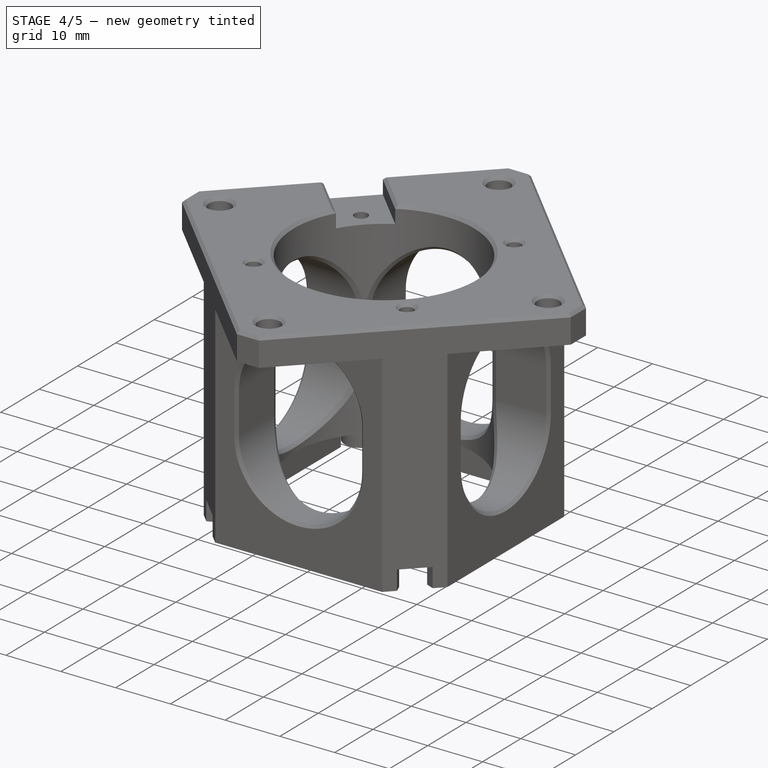
[diagram: stage 4 of 5 — iso view after this stage's code; geometry added in this stage tinted green]
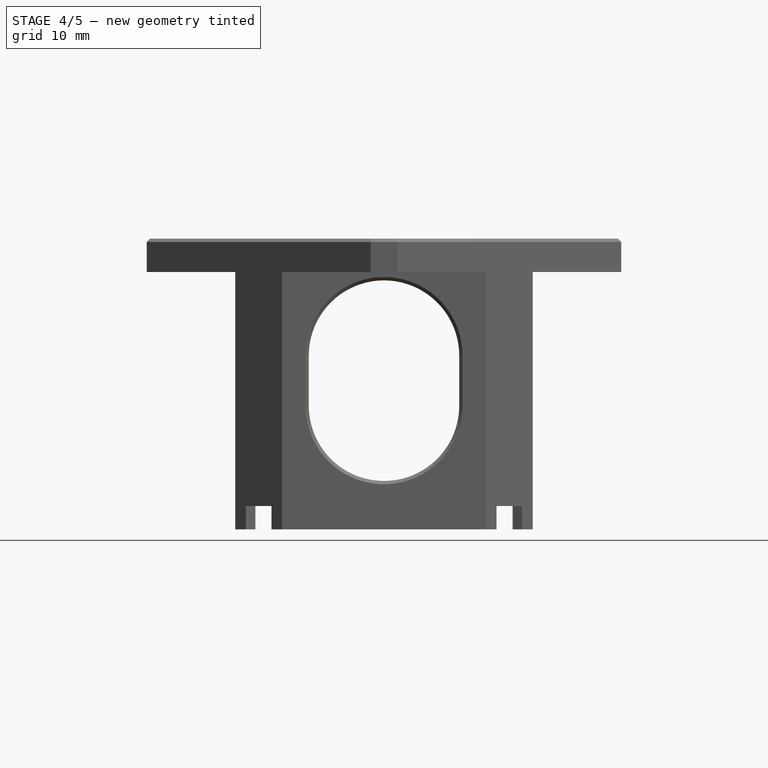
[diagram: stage 4 of 5 — front view after this stage's code; geometry added in this stage tinted green]
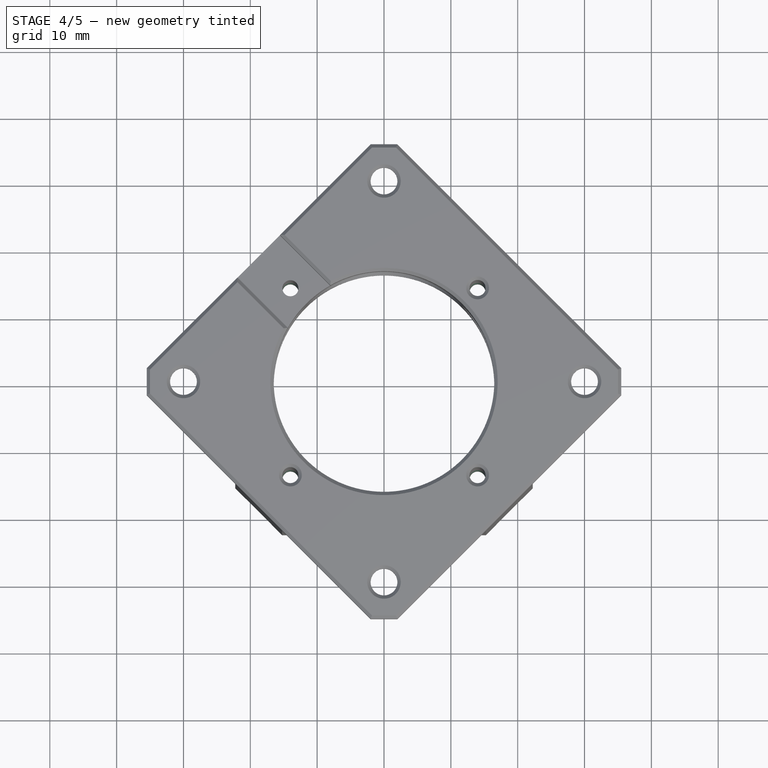
[diagram: stage 4 of 5 — top view after this stage's code; geometry added in this stage tinted green]
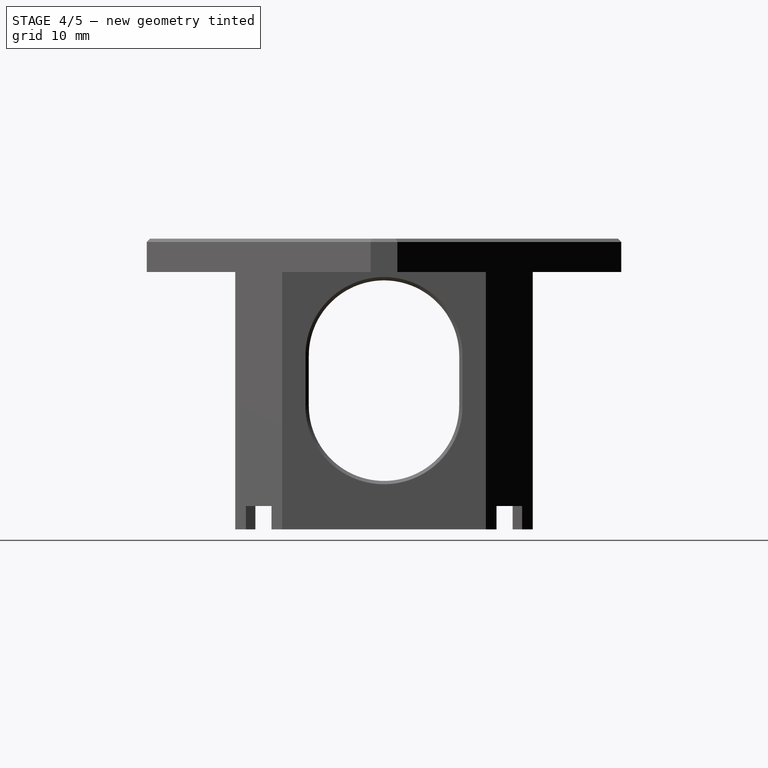
[diagram: stage 4 of 5 — right view after this stage's code; geometry added in this stage tinted green]
FEATURE [PartDesign::Plane] DatumPlane007
  AttachmentOffset = pos=(0,0,0) rot=(0,1,0;1.5708rad)
  Length = 116.996
  MapMode = 5
  Placement = pos=(-18.75,18.75,0) rot=(-0.862856,0.357407,0.357407;4.56541rad)
  ResizeMode = 0
  Support = -> [PolarPattern001]
  Width = 85.0868
FEATURE [Sketcher::SketchObject] Sketch014
  FullyConstrained = true
  MapMode = 5
  Placement = pos=(-18.75,18.75,0) rot=(0.862856,-0.357407,-0.357407;1.71777rad)
  Support = -> [DatumPlane007]
  sketch-geometry (4):
    g0: LineSegment StartX=-4.9 StartY=15 StartZ=0 EndX=-2.9 EndY=15 EndZ=0
    g1: LineSegment StartX=-2.9 StartY=15 StartZ=0 EndX=-2.9 EndY=22 EndZ=0
    g2: LineSegment StartX=-2.9 StartY=22 StartZ=0 EndX=-4.9 EndY=22 EndZ=0
    g3: LineSegment StartX=-4.9 StartY=22 StartZ=0 EndX=-4.9 EndY=15 EndZ=0
  constraints (12):
    c: Coincident(g0,g1)
    c: Coincident(g1,g2)
    c: Coincident(g2,g3)
    c: Coincident(g3,g0)
    c: Horizontal(g0)
    c: Horizontal(g2)
    c: Vertical(g1)
    c: Vertical(g3)
    c: DistanceY(g3,g3) = 7
    c: DistanceX(g2,g2) = 2
    c: DistanceY(g-1,g0) = 15
    c: DistanceX(g0,g-1) = 2.9
FEATURE [PartDesign::Line] DatumLine
  AttacherType = Attacher::AttachEngineLine
  AttachmentOffset = pos=(0,0,-26.5) rot=(-1,0,0;1.5708rad)
  Length = 20
  MapMode = 42
  Placement = pos=(-18.7383,18.7383,27.7888) rot=(0,0,1;0.785398rad)
  ResizeMode = 0
  Support = -> [PolarPattern001]
FEATURE [PartDesign::Plane] DatumPlane009
  Length = 85.2
  MapMode = 5
  Placement = pos=(0,0,14) rot=(1,0,0;3.14159rad)
  ResizeMode = 0
  Support = -> [PolarPattern001]
  Width = 85.2
FEATURE [Sketcher::SketchObject] Sketch015
  ExternalGeometry = -> [PolarPattern001]
  FullyConstrained = true
  MapMode = 5
  Placement = pos=(0,0,14) rot=(1,0,0;3.14159rad)
  Support = -> [DatumPlane009]
  sketch-geometry (2):
    g0: Circle CenterX=-14 CenterY=-14 CenterZ=0 NormalX=0 NormalY=0 NormalZ=1 AngleXU=0 Radius=1.2
    g1: Circle CenterX=-14 CenterY=-14 CenterZ=0 NormalX=0 NormalY=0 NormalZ=1 AngleXU=0 Radius=2.5
  constraints (4):
    c: Coincident(g0,g-4)
    c: Coincident(g1,g0)
    c: Equal(g-4,g1)
    c: Equal(g0,g-3)
FEATURE [PartDesign::Pad] Pad003
  BaseFeature = -> PolarPattern001
  Direction = (1,1,1)
  Length = 4
  Length2 = 100
  Profile = -> Sketch015
  Type = 0
FEATURE [PartDesign::Groove] Groove
  Angle = 360
  Axis = (-1e-16,-2e-16,1)
  Base = (-18.75,18.75,0)
  BaseFeature = -> Pad003
  Profile = -> Sketch014
  ReferenceAxis = -> Sketch014 [V_Axis]
  Reversed = true
FEATURE [PartDesign::Fillet] Fillet
  Base = -> Groove [Edge92,Edge93,Edge91,Edge90]
  BaseFeature = -> Groove
  Radius = 0.9
  SupportTransform = false
FEATURE [Sketcher::SketchObject] Sketch016
  ExternalGeometry = -> [Groove]
  FullyConstrained = true
  MapMode = 5
  Placement = pos=(0,0,6) rot=(1,0,0;3.14159rad)
  Support = -> [DatumPlane006]
  sketch-geometry (5):
    g0: LineSegment StartX=-18.0682 StartY=14.0377 StartZ=0 EndX=-14.0377 EndY=18.0682 EndZ=0
    g1: LineSegment StartX=-14.0377 StartY=18.0682 StartZ=0 EndX=-15.7347 EndY=19.7653 EndZ=0
    g2: LineSegment StartX=-15.7347 StartY=19.7653 StartZ=0 EndX=-19.7653 EndY=15.7347 EndZ=0
    g3: LineSegment StartX=-19.7653 StartY=15.7347 StartZ=0 EndX=-18.0682 EndY=14.0377 EndZ=0
    g4: LineSegment StartX=-16.0529 StartY=16.0529 StartZ=0 EndX=0 EndY=0 EndZ=0
  constraints (15):
    c: Coincident(g0,g1)
    c: Coincident(g1,g2)
    c: Coincident(g2,g3)
    c: Coincident(g3,g0)
    c: Parallel(g2,g0)
    c: Equal(g0,g2)
    c: Perpendicular(g0,g1)
    c: Coincident(g4,g-1)
    c: Symmetric(g0,g0,g4)
    c: Angle(g-1,g4) = 2.35619
    c: Perpendicular(g4,g0)
    c: Distance(g1) = 2.4
    c: Distance(g1,g2) = 5.7
    c: Distance(g-1,g4) = 22.7023
    c: PointOnObject(g1,g-3)
FEATURE [PartDesign::Pocket] Pocket013
  BaseFeature = -> Fillet
  Length = 10
  Length2 = 100
  Profile = -> Sketch016
  Type = 4
FEATURE [PartDesign::Plane] DatumPlane010
  Length = 116.996
  MapMode = 5
  Placement = pos=(-18.75,-18.75,0) rot=(0.862856,-0.357407,-0.357407;1.71777rad)
  ResizeMode = 0
  Support = -> [Pocket013]
  Width = 85.0868
FEATURE [Sketcher::SketchObject] Sketch017
  ExternalGeometry = -> [Pocket013]
  FullyConstrained = true
  MapMode = 5
  Placement = pos=(-18.75,-18.75,0) rot=(0.862856,-0.357407,-0.357407;1.71777rad)
  Support = -> [DatumPlane010]
  sketch-geometry (1):
    g0: Circle CenterX=0 CenterY=10.4 CenterZ=0 NormalX=0 NormalY=0 NormalZ=1 AngleXU=0 Radius=1.7
  constraints (3):
    c: PointOnObject(g0,g-2)
    c: Diameter(g0) = 3.4
    c: Distance(g0,g-3) = 5.6
FEATURE [PartDesign::PolarPattern] PolarPattern002
  Angle = 360
  Axis = -> Z_Axis
  BaseFeature = -> Pocket013
  Occurrences = 4
  Originals = -> [Pad003]
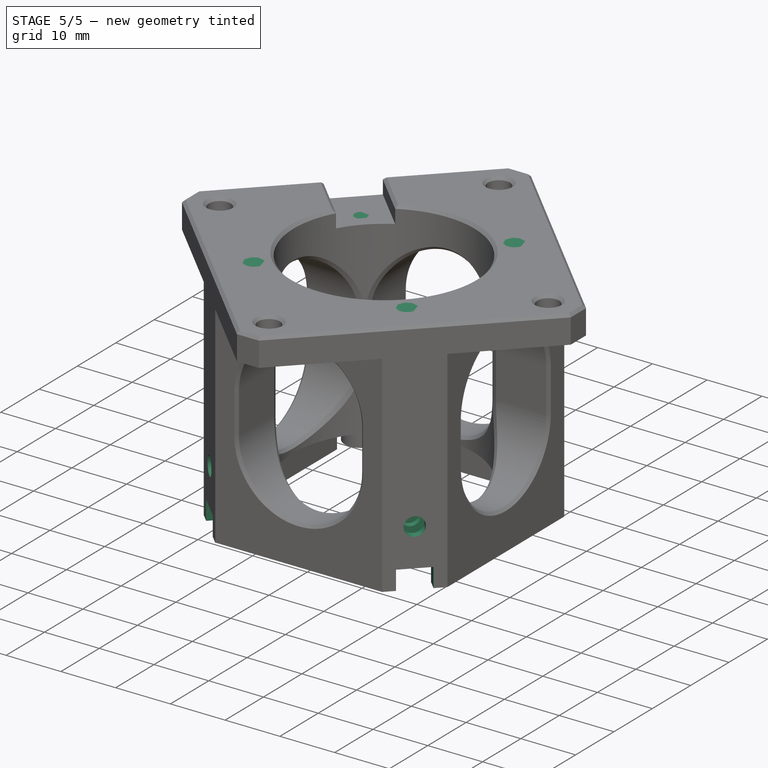
[diagram: stage 5 of 5 — iso view after this stage's code; geometry added in this stage tinted green]
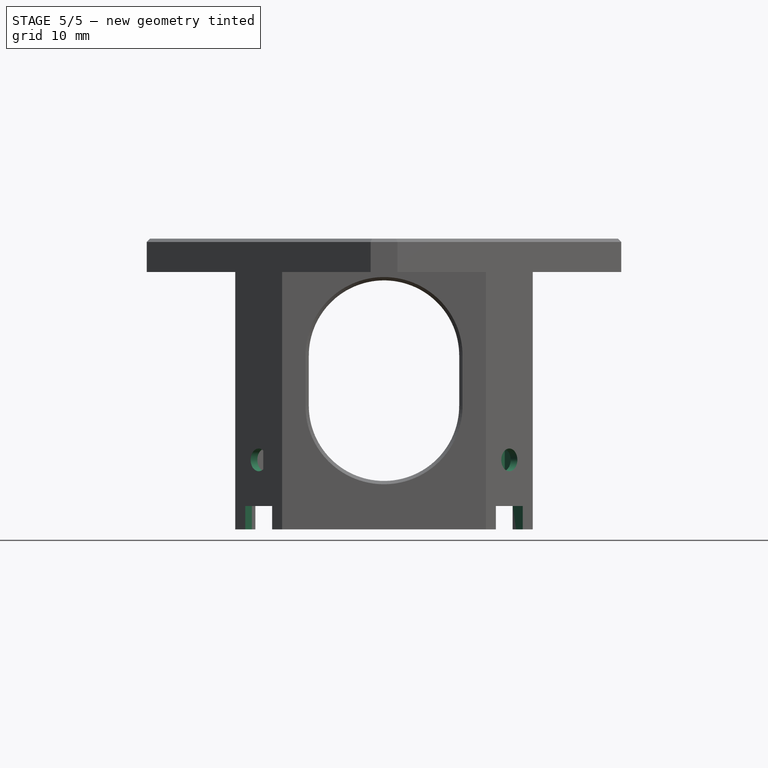
[diagram: stage 5 of 5 — front view after this stage's code; geometry added in this stage tinted green]
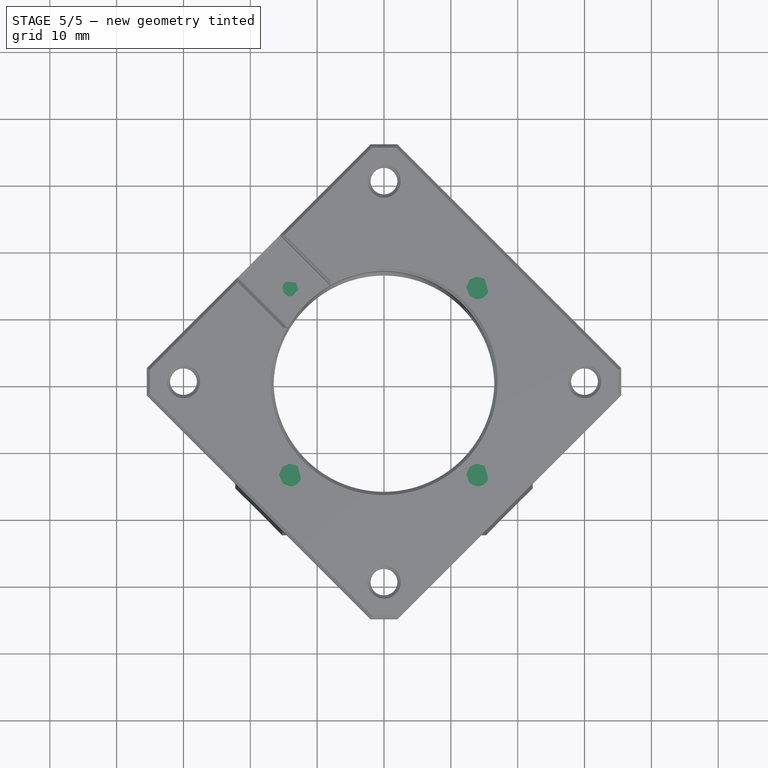
[diagram: stage 5 of 5 — top view after this stage's code; geometry added in this stage tinted green]
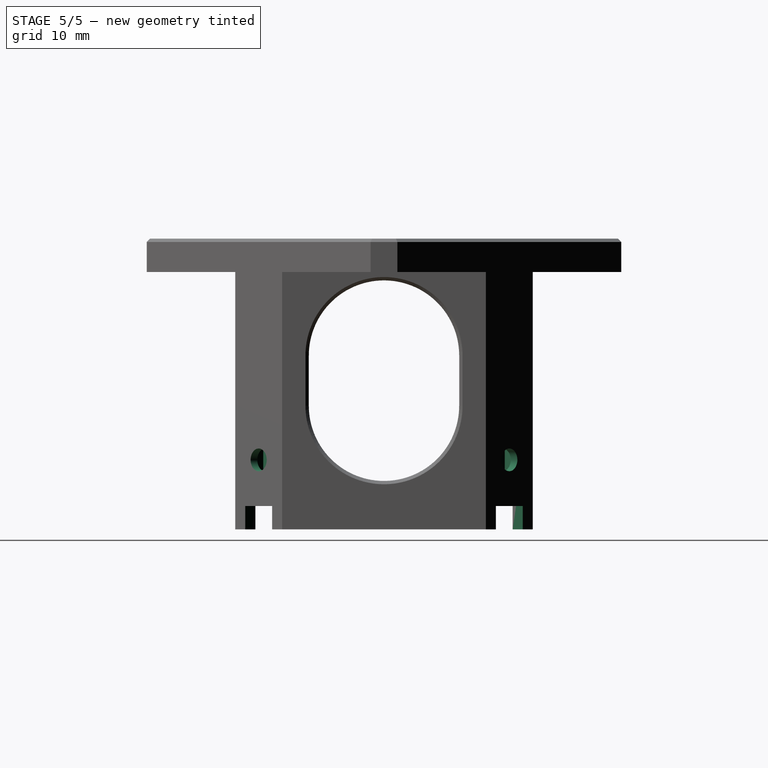
[diagram: stage 5 of 5 — right view after this stage's code; geometry added in this stage tinted green]
FEATURE [PartDesign::Pocket] Pocket014  label="Adjustable Foot Bolt Holes"
  BaseFeature = -> PolarPattern002
  Length = 5
  Length2 = 100
  Profile = -> Sketch017
  Type = 0
FEATURE [PartDesign::PolarPattern] PolarPattern003
  Angle = 180
  Axis = -> Z_Axis
  BaseFeature = -> Pocket014
  Occurrences = 3
  Originals = -> [Pocket014,Pocket013]
FEATURE [PartDesign::Plane] DatumPlane011
  Length = 116.996
  MapMode = 5
  Placement = pos=(17.75,-17.75,1.18e-14) rot=(-0.281085,0.678598,0.678598;3.68962rad)
  ResizeMode = 0
  Support = -> [PolarPattern003]
  Width = 85.0868
FEATURE [Sketcher::SketchObject] Sketch018
  ExternalGeometry = -> [PolarPattern003]
  FullyConstrained = true
  MapMode = 5
  Placement = pos=(17.75,-17.75,1.18e-14) rot=(-0.281085,0.678598,0.678598;3.68962rad)
  Support = -> [DatumPlane011]
  sketch-geometry (4):
    g0: LineSegment StartX=2.85 StartY=-1.42e-14 StartZ=0 EndX=-2.85 EndY=-1.42e-14 EndZ=0
    g1: LineSegment StartX=-2.85 StartY=-1.42e-14 StartZ=0 EndX=-2.85 EndY=3.5 EndZ=0
    g2: LineSegment StartX=-2.85 StartY=3.5 StartZ=0 EndX=2.85 EndY=3.5 EndZ=0
    g3: LineSegment StartX=2.85 StartY=3.5 StartZ=0 EndX=2.85 EndY=-1.42e-14 EndZ=0
  constraints (11):
    c: Coincident(g0,g1)
    c: Coincident(g1,g2)
    c: Coincident(g2,g3)
    c: Coincident(g3,g0)
    c: Horizontal(g0)
    c: Horizontal(g2)
    c: Vertical(g1)
    c: Vertical(g3)
    c: Coincident(g0,g-3)
    c: PointOnObject(g1,g-4)
    c: PointOnObject(g-5,g2)
FEATURE [PartDesign::Pocket] Pocket015
  BaseFeature = -> PolarPattern003
  Length = 3
  Length2 = 2
  Profile = -> Sketch018
  Type = 4
FEATURE [PartDesign::PolarPattern] PolarPattern004
  Angle = 360
  Axis = -> Z_Axis
  BaseFeature = -> Pocket015
  Occurrences = 4
  Originals = -> [Pocket015]
FEATURE [PartDesign::Plane] DatumPlane012
  Length = 85.2
  MapMode = 5
  Placement = pos=(0,0,40.5) rot=(0,0,1;0rad)
  ResizeMode = 0
  Support = -> [PolarPattern004]
  Width = 85.2
FEATURE [Sketcher::SketchObject] Sketch019
  ExternalGeometry = -> [Sketch002]
  FullyConstrained = true
  MapMode = 5
  Placement = pos=(0,0,40.5) rot=(0,0,1;0rad)
  Support = -> [DatumPlane012]
  sketch-geometry (1):
    g0: Circle CenterX=-14 CenterY=14 CenterZ=0 NormalX=0 NormalY=0 NormalZ=1 AngleXU=0 Radius=1.5
  constraints (2):
    c: Coincident(g0,g-3)
    c: Diameter(g0) = 3
FEATURE [PartDesign::Pad] Pad004  label="Plugs M2.5 hole atop overhang"
  BaseFeature = -> PolarPattern004
  Direction = (1,1,1)
  Length = 29.5
  Length2 = 100
  Profile = -> Sketch019
  Reversed = true
  Type = 0
FEATURE [PartDesign::Plane] DatumPlane013
  Length = 85.2
  MapMode = 5
  Placement = pos=(0,0,11) rot=(1,0,0;3.14159rad)
  ResizeMode = 0
  Support = -> [Pad004]
  Width = 85.2
FEATURE [Sketcher::SketchObject] Sketch020
  ExternalGeometry = -> [Pad004]
  FullyConstrained = true
  MapMode = 5
  Placement = pos=(0,0,11) rot=(1,0,0;3.14159rad)
  Support = -> [DatumPlane013]
  sketch-geometry (3):
    g0: Circle CenterX=14 CenterY=-14 CenterZ=0 NormalX=0 NormalY=0 NormalZ=1 AngleXU=0 Radius=1.875
    g1: Circle CenterX=14 CenterY=14 CenterZ=0 NormalX=0 NormalY=0 NormalZ=1 AngleXU=0 Radius=1.875
    g2: Circle CenterX=-14 CenterY=14 CenterZ=0 NormalX=0 NormalY=0 NormalZ=1 AngleXU=0 Radius=1.875
  constraints (6):
    c: Coincident(g0,g-6)
    c: Coincident(g1,g-4)
    c: Coincident(g2,g-3)
    c: Equal(g2,g1)
    c: Equal(g1,g0)
    c: Diameter(g0) = 3.75
FEATURE [PartDesign::Pad] Pad005  label="Plugs 3x M2.5 hole to be 7.5mm deep"
  BaseFeature = -> Pad004
  Direction = (1,1,1)
  Length = 10
  Length2 = 100
  Profile = -> Sketch020
  Type = 3
  UpToFace = -> Pad004 [Face29]
FEATURE [PartDesign::Body] Body
  Group = -> [Sketch,Pad,Sketch001,Pocket,Pad001,Pocket007,Hole,Sketch006,Sketch002,Sketch007,Sketch005,Pocket006,DatumPlane001,DatumPlane002,Sketch008,Pocket008,Sketch009,Pocket009,DatumPlane,Chamfer,DatumPlane003,Sketch010,Pocket010,DatumPlane004,Sketch011,Pocket011,PolarPattern,DatumPlane005,Sketch012,Pocket012,Chamfer002,Chamfer003,DatumPlane006,Sketch013,Pad002,PolarPattern001,DatumPlane007,Sketch014,+23 more]
  Origin = -> Origin
  Tip = -> Pad005
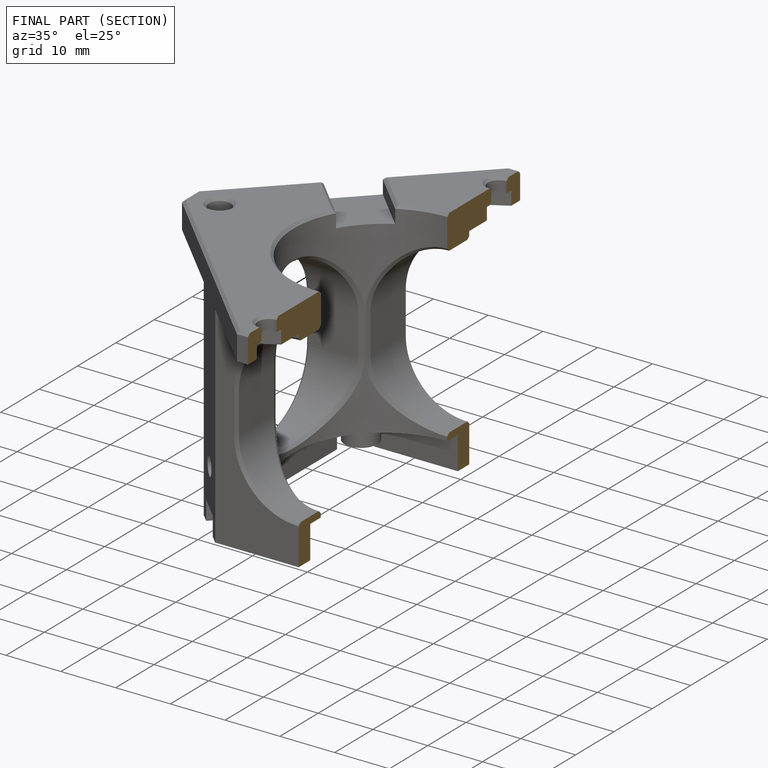
[diagram: finished part — half-section view (interior)]
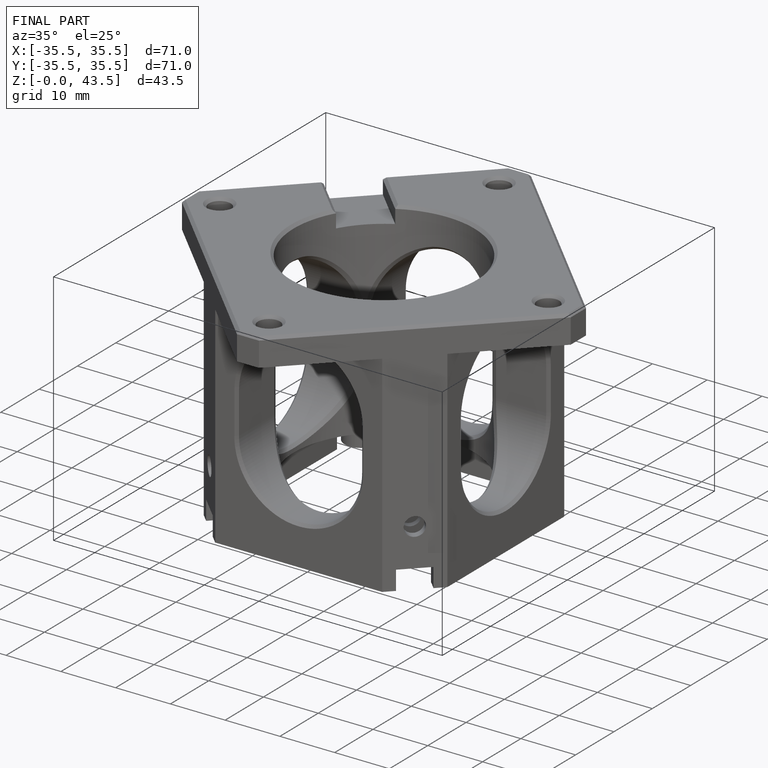
[diagram: finished part — iso view with bounding-box wireframe]
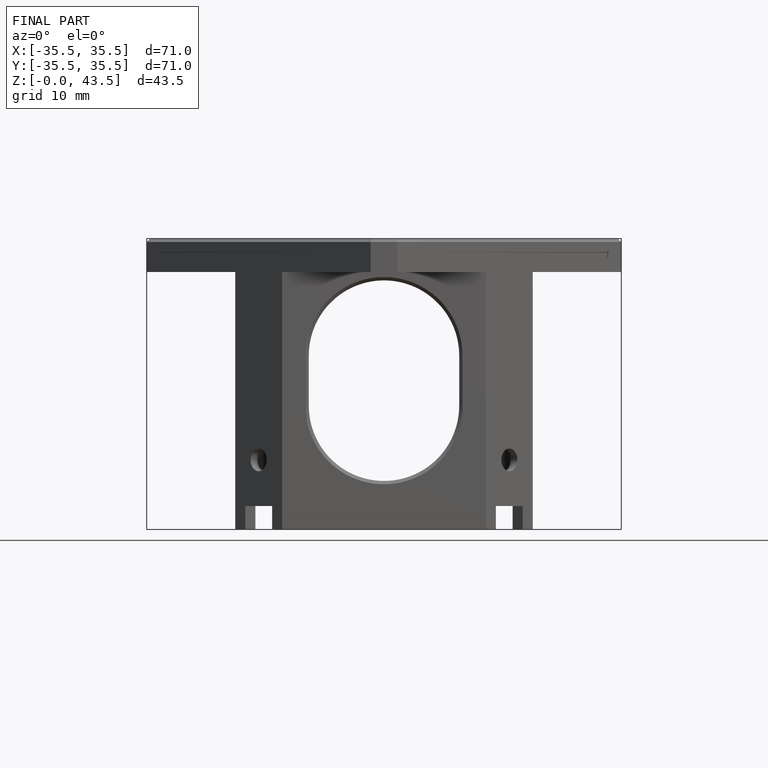
[diagram: finished part — front view with bounding-box wireframe]
